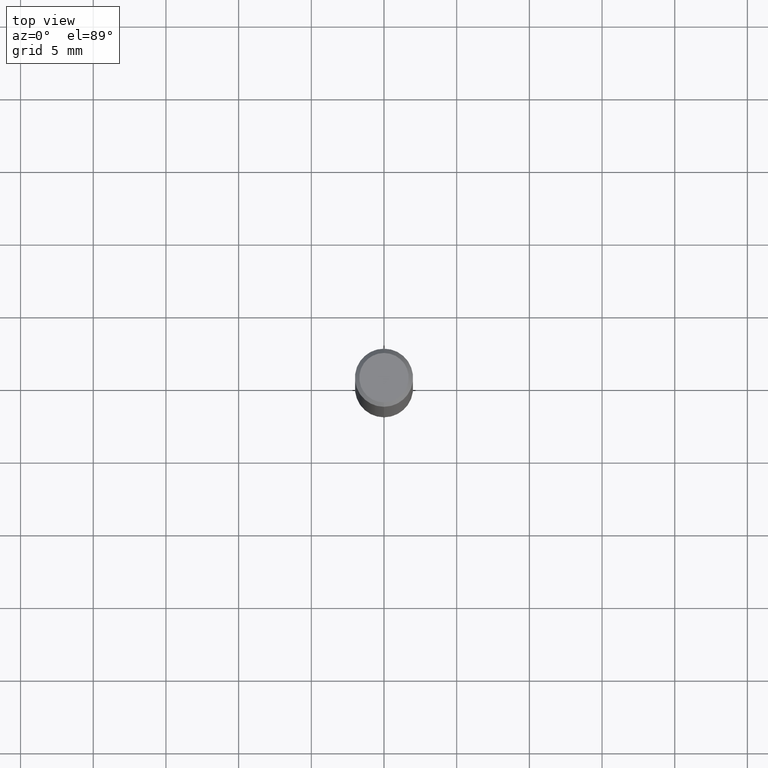
[diagram: clean part render]
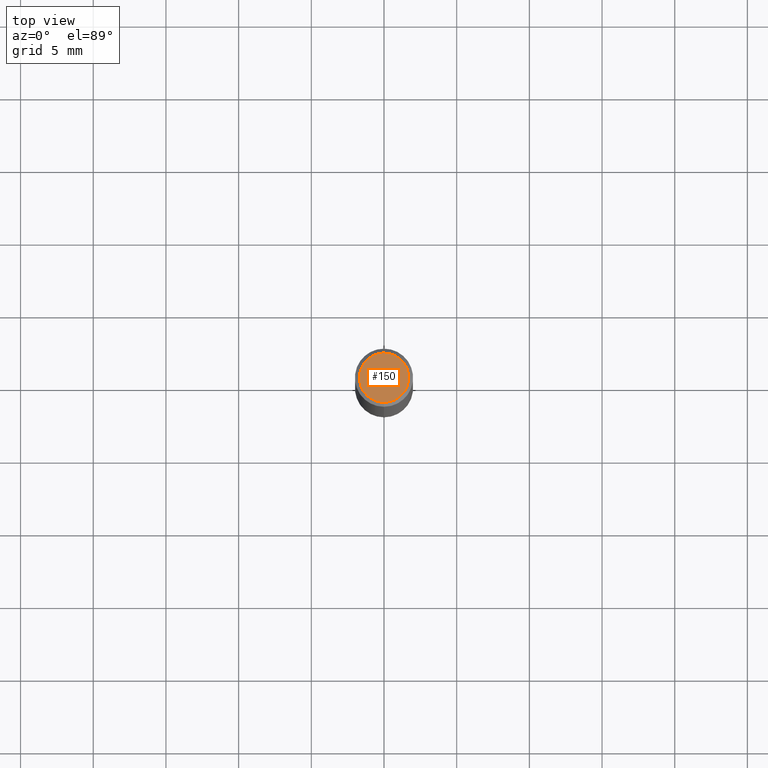
[diagram: same view with one face highlighted and labeled with its STEP entity id]
A machine part, top view. The second image highlights one B-rep face of the part: STEP entity #150.
In plain terms, the highlighted planar face has unit normal (-0, 0, 1).
Its self-contained STEP definition (entity closure, byte-faithful):
#138=VERTEX_POINT('',#299);
#150=ADVANCED_FACE('',(#312),#313,.T.);
#184=EDGE_CURVE('',#230,#138,#352,.T.);
#190=EDGE_CURVE('',#138,#230,#359,.T.);
#230=VERTEX_POINT('',#401);
#299=CARTESIAN_POINT('',(2.08183080149804E-016,-1.7,0.0));
#312=FACE_OUTER_BOUND('',#491,.T.);
#313=PLANE('',#492);
#352=CIRCLE('',#537,1.7);
#359=CIRCLE('',#546,1.7);
#401=CARTESIAN_POINT('',(0.0,1.7,0.0));
#491=EDGE_LOOP('',(#694,#695));
#492=AXIS2_PLACEMENT_3D('',#696,#697,#698);
#537=AXIS2_PLACEMENT_3D('',#747,#748,#749);
#546=AXIS2_PLACEMENT_3D('',#761,#762,#763);
#694=ORIENTED_EDGE('',*,*,#184,.F.);
#695=ORIENTED_EDGE('',*,*,#190,.F.);
#696=CARTESIAN_POINT('',(0.0,0.85,0.0));
#697=DIRECTION('',(-0.0,0.0,1.0));
#698=DIRECTION('',(0.0,-1.0,0.0));
#747=CARTESIAN_POINT('',(0.0,0.0,0.0));
#748=DIRECTION('',(0.0,0.0,-1.0));
#749=DIRECTION('',(0.0,1.0,0.0));
#761=CARTESIAN_POINT('',(0.0,0.0,0.0));
#762=DIRECTION('',(0.0,0.0,-1.0));
#763=DIRECTION('',(0.0,1.0,0.0));